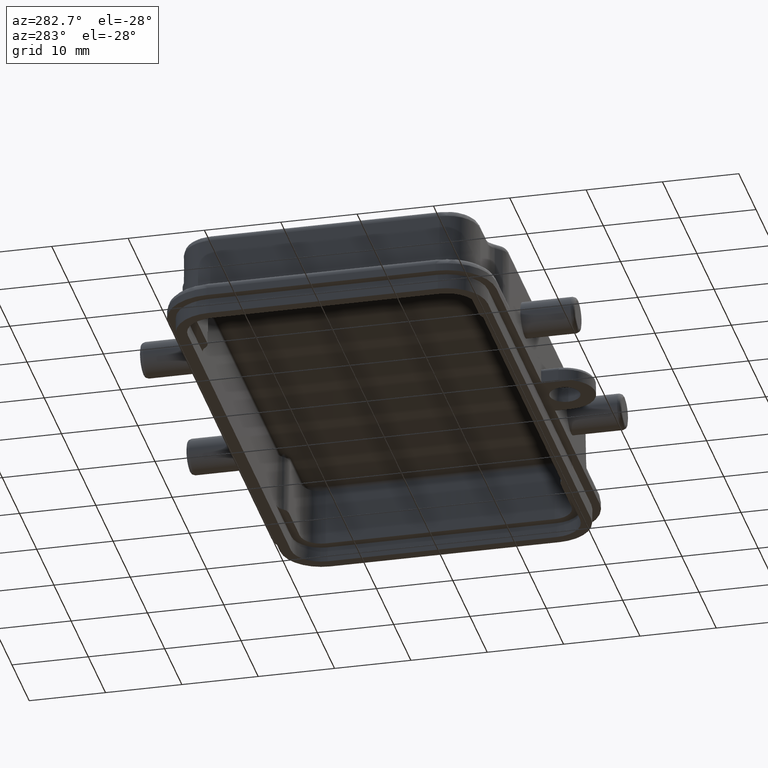
[diagram: clean part render]
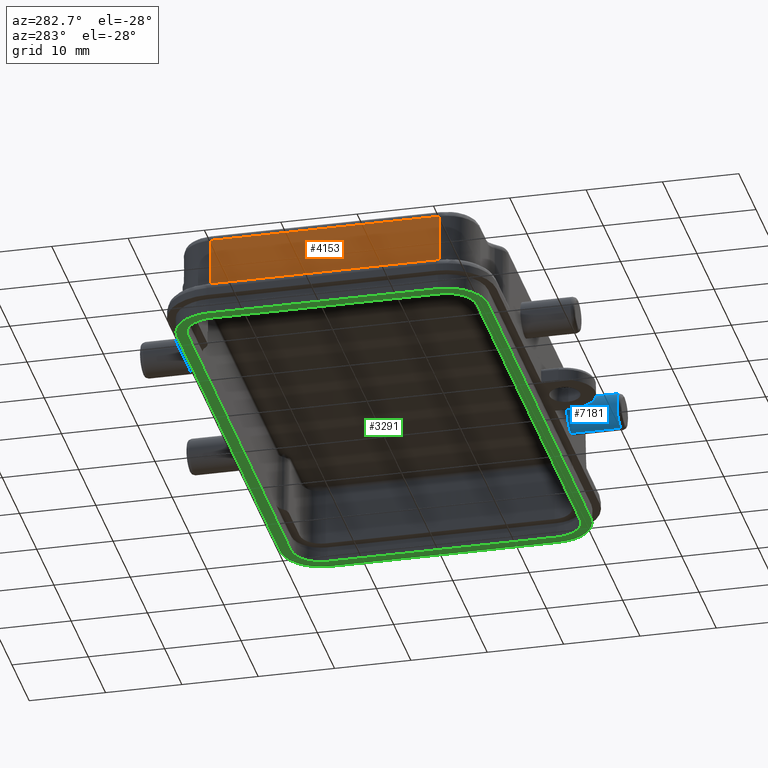
[diagram: same view with three faces highlighted in distinct colors, each labeled with its STEP entity id]
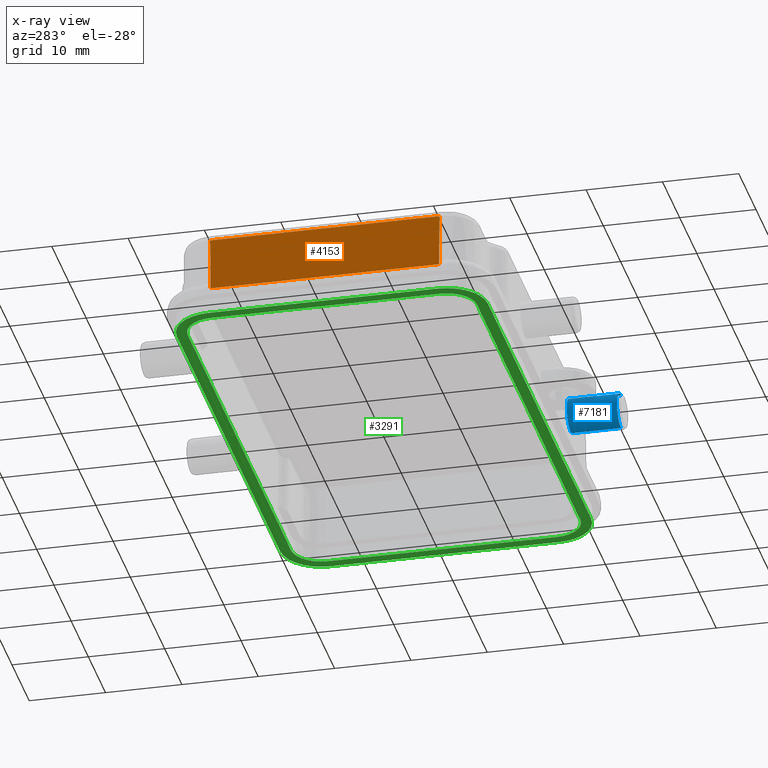
[diagram: x-ray of the same camera — body ghosted, the three highlighted faces saturated]
A machine part, auxiliary view with three faces highlighted in distinct colors.
The next image is the same camera in x-ray (body ghosted, the three faces saturated) — at least one of them is partly hidden behind the body in this view.
Their STEP definitions:

[orange] entity #4153 — the highlighted planar face has unit normal (-0.9998, 0, 0.0175).
#75 = CARTESIAN_POINT ( 'NONE',  ( -344.2760747777817301, -0.5905511811024042323, -19645.66929133858503 ) ) ;
#306 = VECTOR ( 'NONE', #7042, 39.37007874015748143 ) ;
#321 = ORIENTED_EDGE ( 'NONE', *, *, #6475, .F. ) ;
#421 = EDGE_CURVE ( 'NONE', #5628, #882, #2673, .T. ) ;
#882 = VERTEX_POINT ( 'NONE', #3000 ) ;
#1103 = LINE ( 'NONE', #75, #6488 ) ;
#1165 = DIRECTION ( 'NONE',  ( -0.01745240641734325387, -2.137303365641814216E-18, -0.9998476951567392135 ) ) ;
#1258 = FACE_OUTER_BOUND ( 'NONE', #4780, .T. ) ;
#1265 = ORIENTED_EDGE ( 'NONE', *, *, #4530, .F. ) ;
#1852 = CARTESIAN_POINT ( 'NONE',  ( -1.356893301974950283, -0.5905511811023621549, 0.1574803149613818731 ) ) ;
#2051 = EDGE_CURVE ( 'NONE', #882, #3597, #4686, .T. ) ;
#2126 = CARTESIAN_POINT ( 'NONE',  ( -1.358267716535433323, 0.5905511811023621549, 0.07874015748031495954 ) ) ;
#2673 = LINE ( 'NONE', #2126, #306 ) ;
#3000 = CARTESIAN_POINT ( 'NONE',  ( -1.356893301974149590, 0.5905511811023621549, 0.1574803149610058961 ) ) ;
#3376 = DIRECTION ( 'NONE',  ( 0.01745240643728350471, 0.000000000000000000, 0.9998476951563912696 ) ) ;
#3442 = DIRECTION ( 'NONE',  ( -0.9998476951563912696, 0.000000000000000000, 0.01745240643728350471 ) ) ;
#3507 = DIRECTION ( 'NONE',  ( -0.000000000000000000, -1.000000000000000000, 0.000000000000000000 ) ) ;
#3597 = VERTEX_POINT ( 'NONE', #1852 ) ;
#3623 = CARTESIAN_POINT ( 'NONE',  ( -1.356893301974156252, -0.5905511811023621549, 0.1574803149606299191 ) ) ;
#3670 = DIRECTION ( 'NONE',  ( -0.000000000000000000, -1.000000000000000000, -0.000000000000000000 ) ) ;
#3933 = PLANE ( 'NONE',  #7174 ) ;
#3945 = VERTEX_POINT ( 'NONE', #5348 ) ;
#4153 = ADVANCED_FACE ( 'NONE', ( #1258 ), #3933, .T. ) ;
#4224 = LINE ( 'NONE', #6437, #5154 ) ;
#4530 = EDGE_CURVE ( 'NONE', #3945, #3597, #1103, .T. ) ;
#4686 = LINE ( 'NONE', #3623, #5783 ) ;
#4780 = EDGE_LOOP ( 'NONE', ( #6853, #5000, #1265, #321 ) ) ;
#5000 = ORIENTED_EDGE ( 'NONE', *, *, #2051, .T. ) ;
#5154 = VECTOR ( 'NONE', #3670, 39.37007874015748143 ) ;
#5348 = CARTESIAN_POINT ( 'NONE',  ( -1.352070857590689679, -0.5905511811023621549, 0.4337579687576293419 ) ) ;
#5628 = VERTEX_POINT ( 'NONE', #6244 ) ;
#5783 = VECTOR ( 'NONE', #3507, 39.37007874015748143 ) ;
#6216 = CARTESIAN_POINT ( 'NONE',  ( -1.358267716535433323, -0.5905511811023621549, 0.07874015748031495954 ) ) ;
#6244 = CARTESIAN_POINT ( 'NONE',  ( -1.352070857588917763, 0.5905511811023621549, 0.4337579687573740461 ) ) ;
#6437 = CARTESIAN_POINT ( 'NONE',  ( -1.352070857588917097, -0.5905511811023621549, 0.4337579687573740461 ) ) ;
#6475 = EDGE_CURVE ( 'NONE', #5628, #3945, #4224, .T. ) ;
#6488 = VECTOR ( 'NONE', #1165, 39.37007874015748143 ) ;
#6853 = ORIENTED_EDGE ( 'NONE', *, *, #421, .T. ) ;
#7042 = DIRECTION ( 'NONE',  ( -0.01745240643728350471, -0.000000000000000000, -0.9998476951563912696 ) ) ;
#7174 = AXIS2_PLACEMENT_3D ( 'NONE', #6216, #3442, #3376 ) ;

[blue] entity #7181 — the highlighted cylindrical surface (edge-blend (fillet) strip) has radius 2.35 mm, axis along (0, 1, 0).
#213 = CARTESIAN_POINT ( 'NONE',  ( 0.5314960629921260393, -1.102362204724409489, 0.2362204724409449064 ) ) ;
#475 = CARTESIAN_POINT ( 'NONE',  ( 0.5314960629921260393, -1.122047244094488194, 0.3287401574803149873 ) ) ;
#545 = EDGE_CURVE ( 'NONE', #2742, #2908, #967, .T. ) ;
#725 = ORIENTED_EDGE ( 'NONE', *, *, #1111, .T. ) ;
#967 =( BOUNDED_CURVE ( )  B_SPLINE_CURVE ( 3, ( #3983, #3872, #3322, #2237 ),
 .UNSPECIFIED., .F., .F. ) 
 B_SPLINE_CURVE_WITH_KNOTS ( ( 4, 4 ),
 ( 3.141592653589793116, 6.283185307179586232 ),
 .UNSPECIFIED. ) 
 CURVE ( )  GEOMETRIC_REPRESENTATION_ITEM ( )  RATIONAL_B_SPLINE_CURVE ( ( 1.000000000000000000, 0.3333333333333333703, 0.3333333333333333703, 1.000000000000000000 ) ) 
 REPRESENTATION_ITEM ( '' )  );
#1111 = EDGE_CURVE ( 'NONE', #4481, #2908, #6455, .T. ) ;
#1220 = DIRECTION ( 'NONE',  ( 0.000000000000000000, 1.000000000000000000, 0.000000000000000000 ) ) ;
#1332 = VERTEX_POINT ( 'NONE', #2037 ) ;
#1460 = CARTESIAN_POINT ( 'NONE',  ( 0.5314960629921260393, -1.122047244094488194, 0.2362204724409449064 ) ) ;
#1462 = DIRECTION ( 'NONE',  ( 0.000000000000000000, 1.000000000000000000, 0.000000000000000000 ) ) ;
#1612 = CARTESIAN_POINT ( 'NONE',  ( 0.5314960629921260393, -1.102362204724409489, 0.3287401574803149873 ) ) ;
#2037 = CARTESIAN_POINT ( 'NONE',  ( 0.5314960629921260393, -1.102362204724409489, 0.1437007874015747977 ) ) ;
#2087 = VECTOR ( 'NONE', #1462, 39.37007874015748143 ) ;
#2237 = CARTESIAN_POINT ( 'NONE',  ( 0.5314960629921260393, -0.8420929266813315106, 0.3287401574803149873 ) ) ;
#2548 = ORIENTED_EDGE ( 'NONE', *, *, #4206, .F. ) ;
#2570 = AXIS2_PLACEMENT_3D ( 'NONE', #213, #4633, #6954 ) ;
#2607 = EDGE_CURVE ( 'NONE', #1332, #4481, #3263, .T. ) ;
#2742 = VERTEX_POINT ( 'NONE', #6575 ) ;
#2843 = ORIENTED_EDGE ( 'NONE', *, *, #545, .F. ) ;
#2872 = CARTESIAN_POINT ( 'NONE',  ( 0.5314960629921260393, -1.122047244094488194, 0.1437007874015747977 ) ) ;
#2908 = VERTEX_POINT ( 'NONE', #5819 ) ;
#3141 = EDGE_LOOP ( 'NONE', ( #2548, #3861, #725, #2843 ) ) ;
#3263 = CIRCLE ( 'NONE', #2570, 0.09251968503937006705 ) ;
#3322 = CARTESIAN_POINT ( 'NONE',  ( 0.3464566929133858775, -0.8420929266813315106, 0.3287401574803149873 ) ) ;
#3542 = FACE_OUTER_BOUND ( 'NONE', #3141, .T. ) ;
#3861 = ORIENTED_EDGE ( 'NONE', *, *, #2607, .T. ) ;
#3872 = CARTESIAN_POINT ( 'NONE',  ( 0.3464566929133858775, -0.8453228009003324050, 0.1437007874015747977 ) ) ;
#3888 = AXIS2_PLACEMENT_3D ( 'NONE', #1460, #4648, #6386 ) ;
#3983 = CARTESIAN_POINT ( 'NONE',  ( 0.5314960629921260393, -0.8453228009003324050, 0.1437007874015747977 ) ) ;
#4171 = CYLINDRICAL_SURFACE ( 'NONE', #3888, 0.09251968503937006705 ) ;
#4206 = EDGE_CURVE ( 'NONE', #1332, #2742, #6186, .T. ) ;
#4481 = VERTEX_POINT ( 'NONE', #1612 ) ;
#4633 = DIRECTION ( 'NONE',  ( 0.000000000000000000, 1.000000000000000000, 0.000000000000000000 ) ) ;
#4648 = DIRECTION ( 'NONE',  ( 0.000000000000000000, 1.000000000000000000, 0.000000000000000000 ) ) ;
#4754 = VECTOR ( 'NONE', #1220, 39.37007874015748143 ) ;
#5819 = CARTESIAN_POINT ( 'NONE',  ( 0.5314960629921260393, -0.8420929266813315106, 0.3287401574803149873 ) ) ;
#6186 = LINE ( 'NONE', #2872, #4754 ) ;
#6386 = DIRECTION ( 'NONE',  ( 0.000000000000000000, 0.000000000000000000, 1.000000000000000000 ) ) ;
#6455 = LINE ( 'NONE', #475, #2087 ) ;
#6575 = CARTESIAN_POINT ( 'NONE',  ( 0.5314960629921260393, -0.8453228009003324050, 0.1437007874015747977 ) ) ;
#6954 = DIRECTION ( 'NONE',  ( 0.000000000000000000, 0.000000000000000000, 1.000000000000000000 ) ) ;
#7181 = ADVANCED_FACE ( 'NONE', ( #3542 ), #4171, .T. ) ;

[green] entity #3291 — the highlighted planar face has unit normal (0, 0, -1).
#18 = VECTOR ( 'NONE', #4378, 39.37007874015748143 ) ;
#26 = DIRECTION ( 'NONE',  ( -0.000000000000000000, -1.000000000000000000, -0.000000000000000000 ) ) ;
#51 = VERTEX_POINT ( 'NONE', #7083 ) ;
#57 = ORIENTED_EDGE ( 'NONE', *, *, #1938, .F. ) ;
#77 = VECTOR ( 'NONE', #26, 39.37007874015748143 ) ;
#78 = EDGE_CURVE ( 'NONE', #6840, #3239, #1549, .T. ) ;
#205 = LINE ( 'NONE', #3598, #3456 ) ;
#252 = CARTESIAN_POINT ( 'NONE',  ( 1.181102362204724310, 0.5905511811023621549, 0.000000000000000000 ) ) ;
#290 = VERTEX_POINT ( 'NONE', #2967 ) ;
#330 = EDGE_CURVE ( 'NONE', #3056, #290, #5989, .T. ) ;
#395 = AXIS2_PLACEMENT_3D ( 'NONE', #6856, #2556, #5880 ) ;
#470 = ORIENTED_EDGE ( 'NONE', *, *, #78, .F. ) ;
#627 = CIRCLE ( 'NONE', #3184, 0.2112240106371040815 ) ;
#671 = EDGE_CURVE ( 'NONE', #2572, #3230, #2132, .T. ) ;
#765 = ORIENTED_EDGE ( 'NONE', *, *, #6369, .F. ) ;
#839 = CIRCLE ( 'NONE', #6076, 0.2112240106370538162 ) ;
#854 = CARTESIAN_POINT ( 'NONE',  ( -1.181102362204724310, -0.8017751917386534144, 0.000000000000000000 ) ) ;
#897 = AXIS2_PLACEMENT_3D ( 'NONE', #5769, #1926, #6263 ) ;
#902 = ORIENTED_EDGE ( 'NONE', *, *, #5820, .F. ) ;
#973 = EDGE_LOOP ( 'NONE', ( #765, #57, #4083, #470, #902, #4602, #4120, #2235 ) ) ;
#986 = DIRECTION ( 'NONE',  ( -0.000000000000000000, 0.000000000000000000, 1.000000000000000000 ) ) ;
#1083 = CARTESIAN_POINT ( 'NONE',  ( 1.336020083852614837, -0.5905511811023621549, 0.000000000000000000 ) ) ;
#1210 = VERTEX_POINT ( 'NONE', #4632 ) ;
#1218 = CARTESIAN_POINT ( 'NONE',  ( -1.392326372840297921, -0.5905511811023621549, 0.000000000000000000 ) ) ;
#1294 = LINE ( 'NONE', #1218, #77 ) ;
#1362 = AXIS2_PLACEMENT_3D ( 'NONE', #5928, #3705, #4112 ) ;
#1376 = CARTESIAN_POINT ( 'NONE',  ( -1.181102362204724310, 0.7454689027494929565, 0.000000000000000000 ) ) ;
#1413 = DIRECTION ( 'NONE',  ( 0.000000000000000000, 1.000000000000000000, 0.000000000000000000 ) ) ;
#1417 = ORIENTED_EDGE ( 'NONE', *, *, #3851, .T. ) ;
#1431 = VERTEX_POINT ( 'NONE', #1083 ) ;
#1549 = LINE ( 'NONE', #6036, #3381 ) ;
#1554 = EDGE_CURVE ( 'NONE', #1210, #51, #1294, .T. ) ;
#1589 = VERTEX_POINT ( 'NONE', #2902 ) ;
#1622 = DIRECTION ( 'NONE',  ( 1.000000000000000000, 0.000000000000000000, 0.000000000000000000 ) ) ;
#1659 = EDGE_CURVE ( 'NONE', #3230, #3056, #2177, .T. ) ;
#1664 = VERTEX_POINT ( 'NONE', #6397 ) ;
#1672 = VERTEX_POINT ( 'NONE', #4806 ) ;
#1685 = DIRECTION ( 'NONE',  ( -1.000000000000000000, 0.000000000000000000, 0.000000000000000000 ) ) ;
#1857 = FACE_BOUND ( 'NONE', #3087, .T. ) ;
#1926 = DIRECTION ( 'NONE',  ( 0.000000000000000000, 0.000000000000000000, 1.000000000000000000 ) ) ;
#1938 = EDGE_CURVE ( 'NONE', #3718, #1664, #6757, .T. ) ;
#2000 = CARTESIAN_POINT ( 'NONE',  ( -1.181102362204724310, 0.5905511811023621549, 0.000000000000000000 ) ) ;
#2008 = CARTESIAN_POINT ( 'NONE',  ( -1.336020083851889861, -0.5905511811023621549, 0.000000000000000000 ) ) ;
#2132 = LINE ( 'NONE', #4364, #2981 ) ;
#2146 = CARTESIAN_POINT ( 'NONE',  ( -1.393700787401574770, 0.8017751917379356552, 0.000000000000000000 ) ) ;
#2177 = CIRCLE ( 'NONE', #1362, 0.1549177216464048545 ) ;
#2235 = ORIENTED_EDGE ( 'NONE', *, *, #5256, .F. ) ;
#2281 = CARTESIAN_POINT ( 'NONE',  ( 1.392326372840297921, -0.5905511811023621549, 0.000000000000000000 ) ) ;
#2293 = VECTOR ( 'NONE', #3209, 39.37007874015748143 ) ;
#2415 = CARTESIAN_POINT ( 'NONE',  ( 1.181102362204724310, -0.8017751917379356552, -4.268512490100411279E-18 ) ) ;
#2506 = DIRECTION ( 'NONE',  ( -1.000000000000000000, 0.000000000000000000, -0.000000000000000000 ) ) ;
#2556 = DIRECTION ( 'NONE',  ( 0.000000000000000000, 0.000000000000000000, -1.000000000000000000 ) ) ;
#2572 = VERTEX_POINT ( 'NONE', #6776 ) ;
#2593 = DIRECTION ( 'NONE',  ( 1.000000000000000000, 0.000000000000000000, 0.000000000000000000 ) ) ;
#2714 = CARTESIAN_POINT ( 'NONE',  ( -1.181102362204724310, -0.5905511811023621549, 0.000000000000000000 ) ) ;
#2802 = ORIENTED_EDGE ( 'NONE', *, *, #5970, .T. ) ;
#2902 = CARTESIAN_POINT ( 'NONE',  ( 1.336020083851855222, 0.5905511811023621549, 0.000000000000000000 ) ) ;
#2926 = ORIENTED_EDGE ( 'NONE', *, *, #671, .T. ) ;
#2960 = ORIENTED_EDGE ( 'NONE', *, *, #1659, .T. ) ;
#2967 = CARTESIAN_POINT ( 'NONE',  ( 1.181102362204724310, -0.7454689027502527932, 0.000000000000000000 ) ) ;
#2981 = VECTOR ( 'NONE', #6571, 39.37007874015748143 ) ;
#3056 = VERTEX_POINT ( 'NONE', #5414 ) ;
#3087 = EDGE_LOOP ( 'NONE', ( #2960, #6274, #5006, #6044, #2802, #4858, #1417, #2926 ) ) ;
#3165 = AXIS2_PLACEMENT_3D ( 'NONE', #5281, #4842, #5968 ) ;
#3184 = AXIS2_PLACEMENT_3D ( 'NONE', #5915, #986, #2593 ) ;
#3209 = DIRECTION ( 'NONE',  ( 1.000000000000000000, -0.000000000000000000, 0.000000000000000000 ) ) ;
#3230 = VERTEX_POINT ( 'NONE', #2008 ) ;
#3239 = VERTEX_POINT ( 'NONE', #2415 ) ;
#3291 = ADVANCED_FACE ( 'NONE', ( #4642, #1857 ), #3538, .T. ) ;
#3341 = CIRCLE ( 'NONE', #4980, 0.1549177216464048545 ) ;
#3356 = EDGE_CURVE ( 'NONE', #3239, #3718, #627, .T. ) ;
#3381 = VECTOR ( 'NONE', #1622, 39.37007874015748143 ) ;
#3394 = AXIS2_PLACEMENT_3D ( 'NONE', #252, #5635, #1685 ) ;
#3456 = VECTOR ( 'NONE', #1413, 39.37007874015748143 ) ;
#3538 = PLANE ( 'NONE',  #395 ) ;
#3569 = CARTESIAN_POINT ( 'NONE',  ( 1.392326372841085513, -0.5905511811023621549, 0.000000000000000000 ) ) ;
#3598 = CARTESIAN_POINT ( 'NONE',  ( 1.336020083852614393, -0.8464566929133858775, 0.000000000000000000 ) ) ;
#3643 = CIRCLE ( 'NONE', #3165, 0.2112240106371040815 ) ;
#3659 = EDGE_CURVE ( 'NONE', #290, #1431, #6245, .T. ) ;
#3705 = DIRECTION ( 'NONE',  ( 0.000000000000000000, 0.000000000000000000, 1.000000000000000000 ) ) ;
#3718 = VERTEX_POINT ( 'NONE', #3569 ) ;
#3728 = DIRECTION ( 'NONE',  ( -0.000000000000000000, 0.000000000000000000, 1.000000000000000000 ) ) ;
#3835 = VERTEX_POINT ( 'NONE', #6546 ) ;
#3851 = EDGE_CURVE ( 'NONE', #6456, #2572, #3341, .T. ) ;
#4083 = ORIENTED_EDGE ( 'NONE', *, *, #3356, .F. ) ;
#4103 = CIRCLE ( 'NONE', #4689, 0.2112240106370538162 ) ;
#4112 = DIRECTION ( 'NONE',  ( -1.000000000000000000, 0.000000000000000000, 0.000000000000000000 ) ) ;
#4120 = ORIENTED_EDGE ( 'NONE', *, *, #5944, .F. ) ;
#4233 = DIRECTION ( 'NONE',  ( 0.000000000000000000, 0.000000000000000000, 1.000000000000000000 ) ) ;
#4247 = EDGE_CURVE ( 'NONE', #1431, #1589, #205, .T. ) ;
#4364 = CARTESIAN_POINT ( 'NONE',  ( -1.336020083852613949, -0.8464566929133858775, 0.000000000000000000 ) ) ;
#4378 = DIRECTION ( 'NONE',  ( -1.000000000000000000, 0.000000000000000000, -0.000000000000000000 ) ) ;
#4602 = ORIENTED_EDGE ( 'NONE', *, *, #1554, .F. ) ;
#4632 = CARTESIAN_POINT ( 'NONE',  ( -1.392326372841050430, 0.5905511811023621549, 0.000000000000000000 ) ) ;
#4642 = FACE_OUTER_BOUND ( 'NONE', #973, .T. ) ;
#4689 = AXIS2_PLACEMENT_3D ( 'NONE', #6136, #5806, #6921 ) ;
#4700 = LINE ( 'NONE', #5353, #6528 ) ;
#4806 = CARTESIAN_POINT ( 'NONE',  ( -1.181102362204724310, 0.8017751917379356552, -4.268512490100411279E-18 ) ) ;
#4842 = DIRECTION ( 'NONE',  ( -0.000000000000000000, 0.000000000000000000, 1.000000000000000000 ) ) ;
#4858 = ORIENTED_EDGE ( 'NONE', *, *, #5382, .T. ) ;
#4900 = CARTESIAN_POINT ( 'NONE',  ( 1.437007874015747921, -0.7454689027502521270, 0.000000000000000000 ) ) ;
#4977 = DIRECTION ( 'NONE',  ( 1.000000000000000000, 0.000000000000000000, 0.000000000000000000 ) ) ;
#4980 = AXIS2_PLACEMENT_3D ( 'NONE', #2000, #4233, #6445 ) ;
#5006 = ORIENTED_EDGE ( 'NONE', *, *, #3659, .T. ) ;
#5256 = EDGE_CURVE ( 'NONE', #5942, #1672, #7130, .T. ) ;
#5281 = CARTESIAN_POINT ( 'NONE',  ( 1.181102362204724310, 0.5905511811023621549, 0.000000000000000000 ) ) ;
#5353 = CARTESIAN_POINT ( 'NONE',  ( 1.437007874015747921, 0.7454689027502522380, 0.000000000000000000 ) ) ;
#5382 = EDGE_CURVE ( 'NONE', #3835, #6456, #4700, .T. ) ;
#5414 = CARTESIAN_POINT ( 'NONE',  ( -1.181102362204724310, -0.7454689027502527932, 0.000000000000000000 ) ) ;
#5556 = VECTOR ( 'NONE', #6794, 39.37007874015748143 ) ;
#5566 = CARTESIAN_POINT ( 'NONE',  ( 1.181102362204724310, 0.8017751917386883864, 0.000000000000000000 ) ) ;
#5635 = DIRECTION ( 'NONE',  ( 0.000000000000000000, 0.000000000000000000, 1.000000000000000000 ) ) ;
#5769 = CARTESIAN_POINT ( 'NONE',  ( 1.181102362204724310, -0.5905511811023621549, 0.000000000000000000 ) ) ;
#5806 = DIRECTION ( 'NONE',  ( -0.000000000000000000, 0.000000000000000000, 1.000000000000000000 ) ) ;
#5820 = EDGE_CURVE ( 'NONE', #51, #6840, #839, .T. ) ;
#5880 = DIRECTION ( 'NONE',  ( -1.000000000000000000, 0.000000000000000000, -0.000000000000000000 ) ) ;
#5915 = CARTESIAN_POINT ( 'NONE',  ( 1.181102362204724310, -0.5905511811023621549, 0.000000000000000000 ) ) ;
#5928 = CARTESIAN_POINT ( 'NONE',  ( -1.181102362204724310, -0.5905511811023621549, 0.000000000000000000 ) ) ;
#5942 = VERTEX_POINT ( 'NONE', #5566 ) ;
#5944 = EDGE_CURVE ( 'NONE', #1672, #1210, #4103, .T. ) ;
#5968 = DIRECTION ( 'NONE',  ( 1.000000000000000000, 0.000000000000000000, 0.000000000000000000 ) ) ;
#5970 = EDGE_CURVE ( 'NONE', #1589, #3835, #6532, .T. ) ;
#5989 = LINE ( 'NONE', #4900, #2293 ) ;
#6036 = CARTESIAN_POINT ( 'NONE',  ( -1.393700787401574770, -0.8017751917379356552, 0.000000000000000000 ) ) ;
#6044 = ORIENTED_EDGE ( 'NONE', *, *, #4247, .T. ) ;
#6076 = AXIS2_PLACEMENT_3D ( 'NONE', #2714, #3728, #4977 ) ;
#6136 = CARTESIAN_POINT ( 'NONE',  ( -1.181102362204724310, 0.5905511811023621549, 0.000000000000000000 ) ) ;
#6245 = CIRCLE ( 'NONE', #897, 0.1549177216463545892 ) ;
#6263 = DIRECTION ( 'NONE',  ( -1.000000000000000000, 0.000000000000000000, 0.000000000000000000 ) ) ;
#6274 = ORIENTED_EDGE ( 'NONE', *, *, #330, .T. ) ;
#6369 = EDGE_CURVE ( 'NONE', #1664, #5942, #3643, .T. ) ;
#6397 = CARTESIAN_POINT ( 'NONE',  ( 1.392326372841085513, 0.5905511811023621549, 0.000000000000000000 ) ) ;
#6445 = DIRECTION ( 'NONE',  ( -1.000000000000000000, 0.000000000000000000, 0.000000000000000000 ) ) ;
#6456 = VERTEX_POINT ( 'NONE', #1376 ) ;
#6528 = VECTOR ( 'NONE', #2506, 39.37007874015748143 ) ;
#6532 = CIRCLE ( 'NONE', #3394, 0.1549177216463545892 ) ;
#6546 = CARTESIAN_POINT ( 'NONE',  ( 1.181102362204724310, 0.7454689027502529042, 0.000000000000000000 ) ) ;
#6571 = DIRECTION ( 'NONE',  ( -0.000000000000000000, -1.000000000000000000, -0.000000000000000000 ) ) ;
#6757 = LINE ( 'NONE', #2281, #5556 ) ;
#6776 = CARTESIAN_POINT ( 'NONE',  ( -1.336020083852614837, 0.5905511811023621549, 0.000000000000000000 ) ) ;
#6794 = DIRECTION ( 'NONE',  ( 0.000000000000000000, 1.000000000000000000, 0.000000000000000000 ) ) ;
#6840 = VERTEX_POINT ( 'NONE', #854 ) ;
#6856 = CARTESIAN_POINT ( 'NONE',  ( 1.437007874015747921, -0.8464566929133858775, 0.000000000000000000 ) ) ;
#6921 = DIRECTION ( 'NONE',  ( 1.000000000000000000, 0.000000000000000000, 0.000000000000000000 ) ) ;
#7083 = CARTESIAN_POINT ( 'NONE',  ( -1.392326372840297921, -0.5905511811023621549, -4.268512490100411279E-18 ) ) ;
#7130 = LINE ( 'NONE', #2146, #18 ) ;